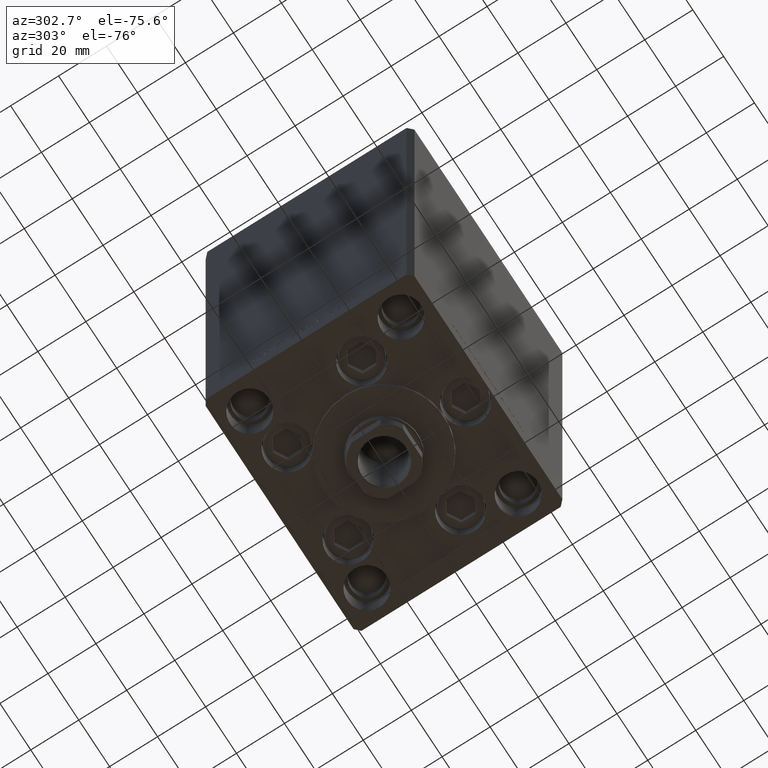
[diagram: clean part render]
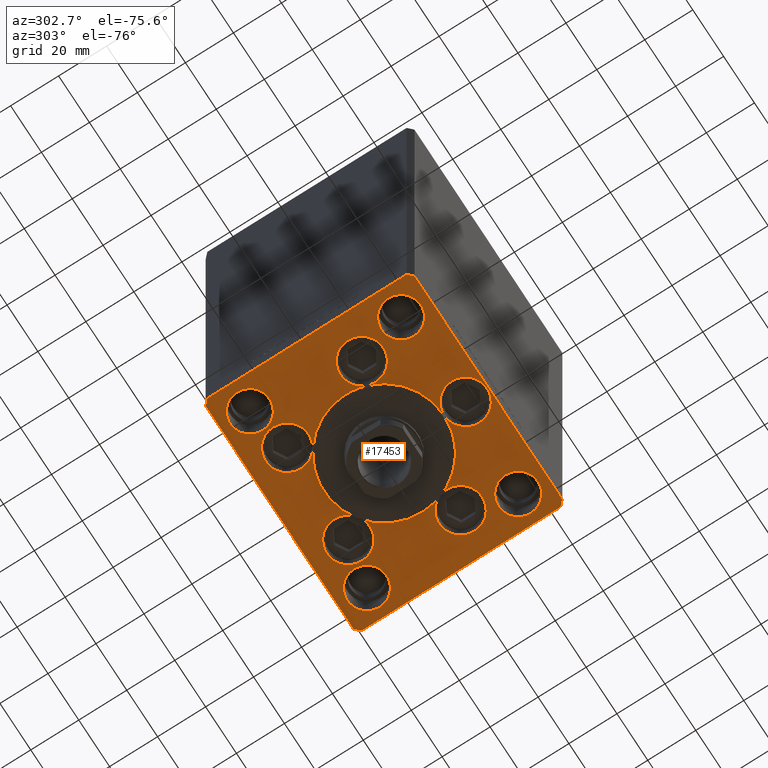
[diagram: same view with one face highlighted and labeled with its STEP entity id]
A machine part, auxiliary view. The second image highlights one B-rep face of the part: STEP entity #17453.
In plain terms, the highlighted planar face has unit normal (0, 0, -1).
Its self-contained STEP definition (entity closure, byte-faithful):
#16 = VERTEX_POINT ( 'NONE', #9636 ) ;
#134 = DIRECTION ( 'NONE',  ( 0.000000000000000000, 0.000000000000000000, 1.000000000000000000 ) ) ;
#420 = ORIENTED_EDGE ( 'NONE', *, *, #46928, .F. ) ;
#467 = AXIS2_PLACEMENT_3D ( 'NONE', #6570, #10533, #25494 ) ;
#691 = EDGE_LOOP ( 'NONE', ( #7470, #17263, #14511, #47252, #4291, #33336, #31871, #9933, #22045, #20170, #30471, #41802, #13029, #11302, #3881, #19226, #420, #13164, #29836, #10150, #27425, #10880 ) ) ;
#726 = AXIS2_PLACEMENT_3D ( 'NONE', #8494, #27417, #11976 ) ;
#769 = CARTESIAN_POINT ( 'NONE',  ( 23.05550741379015633, -11.33333333333332682, 0.000000000000000000 ) ) ;
#800 = CARTESIAN_POINT ( 'NONE',  ( 32.05550741379015989, -11.33333333333332860, 0.000000000000000000 ) ) ;
#864 = DIRECTION ( 'NONE',  ( 1.000000000000000000, 0.000000000000000000, 0.000000000000000000 ) ) ;
#936 = ORIENTED_EDGE ( 'NONE', *, *, #29047, .T. ) ;
#994 = VECTOR ( 'NONE', #11305, 1000.000000000000000 ) ;
#1153 = CARTESIAN_POINT ( 'NONE',  ( -50.00000000000000711, 41.49999999999999289, 0.000000000000000000 ) ) ;
#1226 = FACE_BOUND ( 'NONE', #14929, .T. ) ;
#1275 = CARTESIAN_POINT ( 'NONE',  ( 14.57402977045128623, 20.31249999999998579, 0.000000000000000000 ) ) ;
#1467 = AXIS2_PLACEMENT_3D ( 'NONE', #37613, #6541, #10507 ) ;
#1645 = EDGE_LOOP ( 'NONE', ( #28281, #45213 ) ) ;
#1731 = VERTEX_POINT ( 'NONE', #42754 ) ;
#2144 = DIRECTION ( 'NONE',  ( 1.000000000000000000, 0.000000000000000000, 0.000000000000000000 ) ) ;
#2223 = VERTEX_POINT ( 'NONE', #26697 ) ;
#2377 = CIRCLE ( 'NONE', #36530, 25.00000000000000000 ) ;
#2907 = ORIENTED_EDGE ( 'NONE', *, *, #44178, .F. ) ;
#2910 = CARTESIAN_POINT ( 'NONE',  ( 0.000000000000000000, -34.00000000000000000, 0.000000000000000000 ) ) ;
#3133 = CARTESIAN_POINT ( 'NONE',  ( 47.99999999999999289, 43.50000000000000000, 0.000000000000000000 ) ) ;
#3153 = DIRECTION ( 'NONE',  ( 1.000000000000000000, 0.000000000000000000, 0.000000000000000000 ) ) ;
#3269 = VERTEX_POINT ( 'NONE', #5176 ) ;
#3839 = CARTESIAN_POINT ( 'NONE',  ( 0.000000000000000000, -6.938893903907228378E-15, 0.000000000000000000 ) ) ;
#3881 = ORIENTED_EDGE ( 'NONE', *, *, #34133, .F. ) ;
#4029 = CARTESIAN_POINT ( 'NONE',  ( 50.00000000000000000, 41.50000000000000711, 0.000000000000000000 ) ) ;
#4171 = DIRECTION ( 'NONE',  ( 1.000000000000000000, 0.000000000000000000, 0.000000000000000000 ) ) ;
#4291 = ORIENTED_EDGE ( 'NONE', *, *, #6714, .F. ) ;
#4499 = AXIS2_PLACEMENT_3D ( 'NONE', #12661, #34829, #35807 ) ;
#4556 = CARTESIAN_POINT ( 'NONE',  ( 29.75000000000001066, -31.50000000000000711, 0.000000000000000000 ) ) ;
#4646 = CIRCLE ( 'NONE', #45932, 25.00000000000000000 ) ;
#4648 = EDGE_CURVE ( 'NONE', #36421, #11391, #40799, .T. ) ;
#4782 = DIRECTION ( 'NONE',  ( 0.000000000000000000, 0.000000000000000000, 1.000000000000000000 ) ) ;
#5143 = AXIS2_PLACEMENT_3D ( 'NONE', #14475, #41338, #29429 ) ;
#5158 = CARTESIAN_POINT ( 'NONE',  ( 50.00000000000000000, -41.49999999999992895, 0.000000000000000000 ) ) ;
#5176 = CARTESIAN_POINT ( 'NONE',  ( -41.05550741379015989, -11.33333333333332682, 0.000000000000000000 ) ) ;
#5198 = CIRCLE ( 'NONE', #467, 25.00000000000000000 ) ;
#5259 = EDGE_CURVE ( 'NONE', #25335, #5480, #41557, .T. ) ;
#5294 = DIRECTION ( 'NONE',  ( 1.000000000000000000, 0.000000000000000000, 0.000000000000000000 ) ) ;
#5329 = CARTESIAN_POINT ( 'NONE',  ( -46.25000000000000711, -31.50000000000000711, 0.000000000000000000 ) ) ;
#5480 = VERTEX_POINT ( 'NONE', #1275 ) ;
#5484 = CARTESIAN_POINT ( 'NONE',  ( -50.00000000000000000, -41.50000000000004263, 0.000000000000000000 ) ) ;
#5520 = ORIENTED_EDGE ( 'NONE', *, *, #47137, .T. ) ;
#6032 = CIRCLE ( 'NONE', #48136, 8.250000000000000000 ) ;
#6072 = VECTOR ( 'NONE', #8220, 1000.000000000000000 ) ;
#6541 = DIRECTION ( 'NONE',  ( 0.000000000000000000, 0.000000000000000000, 1.000000000000000000 ) ) ;
#6570 = CARTESIAN_POINT ( 'NONE',  ( 0.000000000000000000, -6.938893903907228378E-15, 0.000000000000000000 ) ) ;
#6593 = DIRECTION ( 'NONE',  ( 0.000000000000000000, 0.000000000000000000, 1.000000000000000000 ) ) ;
#6714 = EDGE_CURVE ( 'NONE', #45288, #5480, #33647, .T. ) ;
#6971 = DIRECTION ( 'NONE',  ( 1.000000000000000000, 1.156482317317871331E-15, 0.000000000000000000 ) ) ;
#7006 = CARTESIAN_POINT ( 'NONE',  ( 50.00000000000000000, 41.50000000000000711, 0.000000000000000000 ) ) ;
#7141 = CARTESIAN_POINT ( 'NONE',  ( 38.00000000000000711, -31.50000000000000711, 0.000000000000000000 ) ) ;
#7154 = ORIENTED_EDGE ( 'NONE', *, *, #36092, .T. ) ;
#7406 = VECTOR ( 'NONE', #6971, 1000.000000000000000 ) ;
#7470 = ORIENTED_EDGE ( 'NONE', *, *, #28594, .F. ) ;
#7489 = VERTEX_POINT ( 'NONE', #11508 ) ;
#8220 = DIRECTION ( 'NONE',  ( -0.7071067811865536790, -0.7071067811865414665, 0.000000000000000000 ) ) ;
#8334 = AXIS2_PLACEMENT_3D ( 'NONE', #35915, #12528, #32186 ) ;
#8494 = CARTESIAN_POINT ( 'NONE',  ( -32.05550741379015989, -11.33333333333332860, 0.000000000000000000 ) ) ;
#8908 = ORIENTED_EDGE ( 'NONE', *, *, #18400, .T. ) ;
#9078 = CARTESIAN_POINT ( 'NONE',  ( -9.000000000000000000, -34.00000000000000000, 0.000000000000000000 ) ) ;
#9081 = CARTESIAN_POINT ( 'NONE',  ( 38.00000000000000000, 31.50000000000000000, 0.000000000000000000 ) ) ;
#9212 = DIRECTION ( 'NONE',  ( 0.7071067811865487940, -0.7071067811865463515, 0.000000000000000000 ) ) ;
#9371 = EDGE_CURVE ( 'NONE', #16721, #47352, #36129, .T. ) ;
#9597 = CARTESIAN_POINT ( 'NONE',  ( -38.00000000000000711, -31.50000000000000711, 0.000000000000000000 ) ) ;
#9636 = CARTESIAN_POINT ( 'NONE',  ( 0.000000000000000000, -25.00000000000000000, 0.000000000000000000 ) ) ;
#9933 = ORIENTED_EDGE ( 'NONE', *, *, #15477, .F. ) ;
#9939 = CARTESIAN_POINT ( 'NONE',  ( 46.25000000000000000, 31.50000000000000000, 0.000000000000000000 ) ) ;
#9997 = VERTEX_POINT ( 'NONE', #46462 ) ;
#10078 = CARTESIAN_POINT ( 'NONE',  ( -38.00000000000000000, 31.50000000000000000, 0.000000000000000000 ) ) ;
#10150 = ORIENTED_EDGE ( 'NONE', *, *, #11003, .F. ) ;
#10412 = CARTESIAN_POINT ( 'NONE',  ( -50.00000000000000000, -41.50000000000004263, 0.000000000000000000 ) ) ;
#10507 = DIRECTION ( 'NONE',  ( 1.000000000000000000, 0.000000000000000000, 0.000000000000000000 ) ) ;
#10533 = DIRECTION ( 'NONE',  ( 0.000000000000000000, 0.000000000000000000, 1.000000000000000000 ) ) ;
#10669 = EDGE_LOOP ( 'NONE', ( #936, #12243, #7154, #14263, #8908, #17847, #5520, #18757 ) ) ;
#10880 = ORIENTED_EDGE ( 'NONE', *, *, #13170, .F. ) ;
#11003 = EDGE_CURVE ( 'NONE', #1731, #25914, #19524, .T. ) ;
#11090 = VECTOR ( 'NONE', #48269, 1000.000000000000114 ) ;
#11139 = DIRECTION ( 'NONE',  ( 1.000000000000000000, 0.000000000000000000, 0.000000000000000000 ) ) ;
#11159 = AXIS2_PLACEMENT_3D ( 'NONE', #18811, #134, #29759 ) ;
#11258 = EDGE_CURVE ( 'NONE', #11385, #47413, #5198, .T. ) ;
#11302 = ORIENTED_EDGE ( 'NONE', *, *, #37822, .F. ) ;
#11305 = DIRECTION ( 'NONE',  ( -1.000000000000000000, -2.891205793294678326E-16, 0.000000000000000000 ) ) ;
#11385 = VERTEX_POINT ( 'NONE', #26225 ) ;
#11391 = VERTEX_POINT ( 'NONE', #19247 ) ;
#11433 = CARTESIAN_POINT ( 'NONE',  ( 0.000000000000000000, -6.938893903907228378E-15, 0.000000000000000000 ) ) ;
#11504 = DIRECTION ( 'NONE',  ( 1.000000000000000000, 0.000000000000000000, 0.000000000000000000 ) ) ;
#11508 = CARTESIAN_POINT ( 'NONE',  ( 47.99999999999999289, 43.50000000000000000, 0.000000000000000000 ) ) ;
#11835 = DIRECTION ( 'NONE',  ( 1.000000000000000000, 0.000000000000000000, 0.000000000000000000 ) ) ;
#11976 = DIRECTION ( 'NONE',  ( 1.000000000000000000, 0.000000000000000000, 0.000000000000000000 ) ) ;
#12036 = CIRCLE ( 'NONE', #36670, 8.250000000000000000 ) ;
#12069 = DIRECTION ( 'NONE',  ( 1.000000000000000000, 0.000000000000000000, 0.000000000000000000 ) ) ;
#12142 = AXIS2_PLACEMENT_3D ( 'NONE', #17998, #14006, #22463 ) ;
#12243 = ORIENTED_EDGE ( 'NONE', *, *, #4648, .T. ) ;
#12270 = CIRCLE ( 'NONE', #8334, 9.000000000000001776 ) ;
#12528 = DIRECTION ( 'NONE',  ( 0.000000000000000000, 0.000000000000000000, 1.000000000000000000 ) ) ;
#12661 = CARTESIAN_POINT ( 'NONE',  ( -19.82068048781374969, 27.62499999999998934, 0.000000000000000000 ) ) ;
#12750 = CIRCLE ( 'NONE', #18348, 9.000000000000000000 ) ;
#12835 = LINE ( 'NONE', #1153, #48271 ) ;
#12904 = FACE_BOUND ( 'NONE', #1645, .T. ) ;
#13029 = ORIENTED_EDGE ( 'NONE', *, *, #38606, .F. ) ;
#13048 = CIRCLE ( 'NONE', #22592, 8.250000000000000000 ) ;
#13105 = EDGE_CURVE ( 'NONE', #18201, #49078, #16379, .T. ) ;
#13154 = FACE_OUTER_BOUND ( 'NONE', #10669, .T. ) ;
#13164 = ORIENTED_EDGE ( 'NONE', *, *, #11258, .F. ) ;
#13170 = EDGE_CURVE ( 'NONE', #25914, #38604, #42579, .T. ) ;
#13393 = CARTESIAN_POINT ( 'NONE',  ( 0.000000000000000000, -34.00000000000000000, 0.000000000000000000 ) ) ;
#13844 = DIRECTION ( 'NONE',  ( 0.000000000000000000, 0.000000000000000000, 1.000000000000000000 ) ) ;
#13949 = CIRCLE ( 'NONE', #34653, 9.000000000000001776 ) ;
#14006 = DIRECTION ( 'NONE',  ( 0.000000000000000000, 0.000000000000000000, 1.000000000000000000 ) ) ;
#14149 = CARTESIAN_POINT ( 'NONE',  ( -19.82068048781374969, 27.62499999999998934, 0.000000000000000000 ) ) ;
#14168 = CIRCLE ( 'NONE', #49136, 9.000000000000001776 ) ;
#14263 = ORIENTED_EDGE ( 'NONE', *, *, #17620, .T. ) ;
#14300 = DIRECTION ( 'NONE',  ( 1.000000000000000000, 0.000000000000000000, 0.000000000000000000 ) ) ;
#14475 = CARTESIAN_POINT ( 'NONE',  ( 19.82068048781374969, 27.62499999999998934, 0.000000000000000000 ) ) ;
#14511 = ORIENTED_EDGE ( 'NONE', *, *, #20103, .F. ) ;
#14703 = LINE ( 'NONE', #7006, #36070 ) ;
#14929 = EDGE_LOOP ( 'NONE', ( #39606, #46557 ) ) ;
#15127 = LINE ( 'NONE', #5158, #32881 ) ;
#15477 = EDGE_CURVE ( 'NONE', #29057, #30618, #14168, .T. ) ;
#15647 = AXIS2_PLACEMENT_3D ( 'NONE', #39002, #30817, #31546 ) ;
#15752 = CIRCLE ( 'NONE', #39575, 9.000000000000001776 ) ;
#15862 = DIRECTION ( 'NONE',  ( 0.000000000000000000, 1.000000000000000000, 0.000000000000000000 ) ) ;
#15911 = EDGE_CURVE ( 'NONE', #3269, #9997, #12270, .T. ) ;
#15969 = DIRECTION ( 'NONE',  ( 0.000000000000000000, 0.000000000000000000, 1.000000000000000000 ) ) ;
#16277 = AXIS2_PLACEMENT_3D ( 'NONE', #9081, #20543, #12069 ) ;
#16379 = CIRCLE ( 'NONE', #19598, 8.249999999999992895 ) ;
#16409 = DIRECTION ( 'NONE',  ( 1.000000000000000000, 0.000000000000000000, 0.000000000000000000 ) ) ;
#16444 = CARTESIAN_POINT ( 'NONE',  ( 32.05550741379015989, -11.33333333333332860, 0.000000000000000000 ) ) ;
#16487 = CARTESIAN_POINT ( 'NONE',  ( -32.05550741379015989, -11.33333333333332860, 0.000000000000000000 ) ) ;
#16654 = CARTESIAN_POINT ( 'NONE',  ( 0.000000000000000000, 0.000000000000000000, 0.000000000000000000 ) ) ;
#16721 = VERTEX_POINT ( 'NONE', #40264 ) ;
#16900 = FACE_BOUND ( 'NONE', #691, .T. ) ;
#17263 = ORIENTED_EDGE ( 'NONE', *, *, #5259, .F. ) ;
#17365 = CIRCLE ( 'NONE', #1467, 8.249999999999992895 ) ;
#17396 = CIRCLE ( 'NONE', #726, 9.000000000000001776 ) ;
#17453 = ADVANCED_FACE ( 'NONE', ( #16900, #1226, #12904, #31581, #20397, #13154 ), #43256, .T. ) ;
#17479 = VERTEX_POINT ( 'NONE', #10412 ) ;
#17620 = EDGE_CURVE ( 'NONE', #17952, #40995, #15127, .T. ) ;
#17774 = CARTESIAN_POINT ( 'NONE',  ( 50.00000000000000000, -41.49999999999992895, 0.000000000000000000 ) ) ;
#17847 = ORIENTED_EDGE ( 'NONE', *, *, #42592, .T. ) ;
#17924 = AXIS2_PLACEMENT_3D ( 'NONE', #14149, #22358, #11139 ) ;
#17952 = VERTEX_POINT ( 'NONE', #17774 ) ;
#17998 = CARTESIAN_POINT ( 'NONE',  ( 19.82068048781374969, 27.62499999999998934, 0.000000000000000000 ) ) ;
#18201 = VERTEX_POINT ( 'NONE', #4556 ) ;
#18348 = AXIS2_PLACEMENT_3D ( 'NONE', #2910, #41200, #3153 ) ;
#18400 = EDGE_CURVE ( 'NONE', #40995, #7489, #14703, .T. ) ;
#18757 = ORIENTED_EDGE ( 'NONE', *, *, #31086, .T. ) ;
#18798 = LINE ( 'NONE', #3133, #994 ) ;
#18811 = CARTESIAN_POINT ( 'NONE',  ( 0.000000000000000000, -6.938893903907228378E-15, 0.000000000000000000 ) ) ;
#19103 = AXIS2_PLACEMENT_3D ( 'NONE', #19797, #34953, #864 ) ;
#19226 = ORIENTED_EDGE ( 'NONE', *, *, #15911, .F. ) ;
#19247 = CARTESIAN_POINT ( 'NONE',  ( 48.00000000000000711, -43.49999999999992184, 0.000000000000000000 ) ) ;
#19524 = CIRCLE ( 'NONE', #17924, 9.000000000000000000 ) ;
#19598 = AXIS2_PLACEMENT_3D ( 'NONE', #7141, #26060, #22314 ) ;
#19697 = CARTESIAN_POINT ( 'NONE',  ( 32.05550741379015989, -11.33333333333332860, 0.000000000000000000 ) ) ;
#19797 = CARTESIAN_POINT ( 'NONE',  ( 0.000000000000000000, -34.00000000000000000, 0.000000000000000000 ) ) ;
#19936 = CARTESIAN_POINT ( 'NONE',  ( -48.00000000000000000, 43.49999999999997158, 0.000000000000000000 ) ) ;
#20103 = EDGE_CURVE ( 'NONE', #30236, #25335, #26607, .T. ) ;
#20170 = ORIENTED_EDGE ( 'NONE', *, *, #36780, .F. ) ;
#20299 = DIRECTION ( 'NONE',  ( 0.000000000000000000, 0.000000000000000000, 1.000000000000000000 ) ) ;
#20397 = FACE_BOUND ( 'NONE', #36146, .T. ) ;
#20543 = DIRECTION ( 'NONE',  ( 0.000000000000000000, 0.000000000000000000, 1.000000000000000000 ) ) ;
#21156 = AXIS2_PLACEMENT_3D ( 'NONE', #46397, #20299, #11835 ) ;
#21700 = DIRECTION ( 'NONE',  ( -0.7071067811865512365, 0.7071067811865439090, 0.000000000000000000 ) ) ;
#21791 = CARTESIAN_POINT ( 'NONE',  ( 28.82068048781374969, 27.62499999999998934, 0.000000000000000000 ) ) ;
#22044 = CARTESIAN_POINT ( 'NONE',  ( -38.00000000000000000, 31.50000000000000000, 0.000000000000000000 ) ) ;
#22045 = ORIENTED_EDGE ( 'NONE', *, *, #47977, .F. ) ;
#22291 = CIRCLE ( 'NONE', #11159, 25.00000000000000000 ) ;
#22314 = DIRECTION ( 'NONE',  ( 1.000000000000000000, 0.000000000000000000, 0.000000000000000000 ) ) ;
#22358 = DIRECTION ( 'NONE',  ( 0.000000000000000000, 0.000000000000000000, 1.000000000000000000 ) ) ;
#22463 = DIRECTION ( 'NONE',  ( 1.000000000000000000, 0.000000000000000000, 0.000000000000000000 ) ) ;
#22592 = AXIS2_PLACEMENT_3D ( 'NONE', #46382, #46632, #27258 ) ;
#22738 = AXIS2_PLACEMENT_3D ( 'NONE', #19697, #27159, #42067 ) ;
#22833 = VERTEX_POINT ( 'NONE', #43120 ) ;
#23034 = EDGE_CURVE ( 'NONE', #45229, #37783, #47349, .T. ) ;
#23220 = AXIS2_PLACEMENT_3D ( 'NONE', #9597, #28029, #36221 ) ;
#23250 = EDGE_CURVE ( 'NONE', #23355, #22833, #6032, .T. ) ;
#23355 = VERTEX_POINT ( 'NONE', #48152 ) ;
#23818 = VERTEX_POINT ( 'NONE', #47543 ) ;
#23975 = EDGE_CURVE ( 'NONE', #38604, #1731, #33092, .T. ) ;
#24860 = CARTESIAN_POINT ( 'NONE',  ( -48.00000000000000711, -43.50000000000002842, 0.000000000000000000 ) ) ;
#24941 = EDGE_CURVE ( 'NONE', #47352, #16721, #33914, .T. ) ;
#25335 = VERTEX_POINT ( 'NONE', #32479 ) ;
#25494 = DIRECTION ( 'NONE',  ( 1.000000000000000000, 0.000000000000000000, 0.000000000000000000 ) ) ;
#25543 = DIRECTION ( 'NONE',  ( 1.000000000000000000, 0.000000000000000000, 0.000000000000000000 ) ) ;
#25656 = CARTESIAN_POINT ( 'NONE',  ( 48.00000000000000711, -43.49999999999992184, 0.000000000000000000 ) ) ;
#25914 = VERTEX_POINT ( 'NONE', #28820 ) ;
#26060 = DIRECTION ( 'NONE',  ( 0.000000000000000000, 0.000000000000000000, 1.000000000000000000 ) ) ;
#26139 = CARTESIAN_POINT ( 'NONE',  ( 46.25000000000000000, -31.50000000000000711, 0.000000000000000000 ) ) ;
#26225 = CARTESIAN_POINT ( 'NONE',  ( -25.00000000000000000, -6.938893903907228378E-15, 0.000000000000000000 ) ) ;
#26607 = CIRCLE ( 'NONE', #5143, 8.999999999999998224 ) ;
#26697 = CARTESIAN_POINT ( 'NONE',  ( -50.00000000000000711, 41.49999999999999289, 0.000000000000000000 ) ) ;
#26883 = CIRCLE ( 'NONE', #34788, 25.00000000000000000 ) ;
#26915 = LINE ( 'NONE', #42292, #6072 ) ;
#26954 = CARTESIAN_POINT ( 'NONE',  ( 0.000000000000000000, -6.938893903907228378E-15, 0.000000000000000000 ) ) ;
#27128 = DIRECTION ( 'NONE',  ( 0.000000000000000000, 0.000000000000000000, 1.000000000000000000 ) ) ;
#27159 = DIRECTION ( 'NONE',  ( 0.000000000000000000, 0.000000000000000000, 1.000000000000000000 ) ) ;
#27258 = DIRECTION ( 'NONE',  ( 1.000000000000000000, 0.000000000000000000, 0.000000000000000000 ) ) ;
#27417 = DIRECTION ( 'NONE',  ( 0.000000000000000000, 0.000000000000000000, 1.000000000000000000 ) ) ;
#27425 = ORIENTED_EDGE ( 'NONE', *, *, #23975, .F. ) ;
#27705 = AXIS2_PLACEMENT_3D ( 'NONE', #32979, #36222, #2144 ) ;
#28029 = DIRECTION ( 'NONE',  ( 0.000000000000000000, 0.000000000000000000, 1.000000000000000000 ) ) ;
#28281 = ORIENTED_EDGE ( 'NONE', *, *, #23250, .F. ) ;
#28577 = ORIENTED_EDGE ( 'NONE', *, *, #41750, .F. ) ;
#28594 = EDGE_CURVE ( 'NONE', #5480, #25914, #4646, .T. ) ;
#28797 = CARTESIAN_POINT ( 'NONE',  ( -10.82068048781375147, 27.62499999999998934, 0.000000000000000000 ) ) ;
#28820 = CARTESIAN_POINT ( 'NONE',  ( -14.57402977045128978, 20.31249999999999289, 0.000000000000000000 ) ) ;
#29043 = DIRECTION ( 'NONE',  ( 1.000000000000000000, 0.000000000000000000, 0.000000000000000000 ) ) ;
#29047 = EDGE_CURVE ( 'NONE', #17479, #36421, #43283, .T. ) ;
#29057 = VERTEX_POINT ( 'NONE', #769 ) ;
#29092 = VERTEX_POINT ( 'NONE', #19936 ) ;
#29429 = DIRECTION ( 'NONE',  ( 1.000000000000000000, 0.000000000000000000, 0.000000000000000000 ) ) ;
#29759 = DIRECTION ( 'NONE',  ( 1.000000000000000000, 0.000000000000000000, 0.000000000000000000 ) ) ;
#29836 = ORIENTED_EDGE ( 'NONE', *, *, #38624, .F. ) ;
#30236 = VERTEX_POINT ( 'NONE', #21791 ) ;
#30253 = EDGE_CURVE ( 'NONE', #5480, #30236, #38022, .T. ) ;
#30471 = ORIENTED_EDGE ( 'NONE', *, *, #38052, .F. ) ;
#30548 = DIRECTION ( 'NONE',  ( 0.000000000000000000, 0.000000000000000000, 1.000000000000000000 ) ) ;
#30602 = DIRECTION ( 'NONE',  ( 1.000000000000000000, 0.000000000000000000, 0.000000000000000000 ) ) ;
#30618 = VERTEX_POINT ( 'NONE', #45265 ) ;
#30817 = DIRECTION ( 'NONE',  ( 0.000000000000000000, 0.000000000000000000, 1.000000000000000000 ) ) ;
#31086 = EDGE_CURVE ( 'NONE', #2223, #17479, #12835, .T. ) ;
#31153 = CIRCLE ( 'NONE', #23220, 8.250000000000000000 ) ;
#31260 = DIRECTION ( 'NONE',  ( 8.360113137237620037E-17, -1.000000000000000000, 0.000000000000000000 ) ) ;
#31546 = DIRECTION ( 'NONE',  ( 1.000000000000000000, 0.000000000000000000, 0.000000000000000000 ) ) ;
#31581 = FACE_BOUND ( 'NONE', #37365, .T. ) ;
#31597 = EDGE_CURVE ( 'NONE', #30618, #40941, #15752, .T. ) ;
#31871 = ORIENTED_EDGE ( 'NONE', *, *, #31597, .F. ) ;
#31890 = EDGE_CURVE ( 'NONE', #40941, #45288, #26883, .T. ) ;
#31891 = ORIENTED_EDGE ( 'NONE', *, *, #13105, .F. ) ;
#32186 = DIRECTION ( 'NONE',  ( 1.000000000000000000, 0.000000000000000000, 0.000000000000000000 ) ) ;
#32315 = DIRECTION ( 'NONE',  ( 1.000000000000000000, 0.000000000000000000, 0.000000000000000000 ) ) ;
#32479 = CARTESIAN_POINT ( 'NONE',  ( 10.82068048781375147, 27.62499999999998934, 0.000000000000000000 ) ) ;
#32763 = CARTESIAN_POINT ( 'NONE',  ( 0.000000000000000000, -6.938893903907228378E-15, 0.000000000000000000 ) ) ;
#32863 = LINE ( 'NONE', #25656, #11090 ) ;
#32881 = VECTOR ( 'NONE', #15862, 1000.000000000000000 ) ;
#32979 = CARTESIAN_POINT ( 'NONE',  ( 19.82068048781374969, 27.62499999999998934, 0.000000000000000000 ) ) ;
#33092 = CIRCLE ( 'NONE', #4499, 9.000000000000000000 ) ;
#33283 = EDGE_CURVE ( 'NONE', #49078, #18201, #17365, .T. ) ;
#33336 = ORIENTED_EDGE ( 'NONE', *, *, #31890, .F. ) ;
#33647 = CIRCLE ( 'NONE', #34459, 25.00000000000000000 ) ;
#33914 = CIRCLE ( 'NONE', #15647, 8.250000000000000000 ) ;
#33940 = DIRECTION ( 'NONE',  ( 1.000000000000000000, 0.000000000000000000, 0.000000000000000000 ) ) ;
#34081 = CARTESIAN_POINT ( 'NONE',  ( -48.00000000000000711, -43.50000000000002842, 0.000000000000000000 ) ) ;
#34133 = EDGE_CURVE ( 'NONE', #9997, #47413, #17396, .T. ) ;
#34459 = AXIS2_PLACEMENT_3D ( 'NONE', #11433, #27128, #30602 ) ;
#34653 = AXIS2_PLACEMENT_3D ( 'NONE', #16487, #46326, #5294 ) ;
#34788 = AXIS2_PLACEMENT_3D ( 'NONE', #42214, #30548, #4171 ) ;
#34829 = DIRECTION ( 'NONE',  ( 0.000000000000000000, 0.000000000000000000, 1.000000000000000000 ) ) ;
#34953 = DIRECTION ( 'NONE',  ( 0.000000000000000000, 0.000000000000000000, 1.000000000000000000 ) ) ;
#35807 = DIRECTION ( 'NONE',  ( 1.000000000000000000, 0.000000000000000000, 0.000000000000000000 ) ) ;
#35915 = CARTESIAN_POINT ( 'NONE',  ( -32.05550741379015989, -11.33333333333332860, 0.000000000000000000 ) ) ;
#36070 = VECTOR ( 'NONE', #21700, 999.9999999999998863 ) ;
#36092 = EDGE_CURVE ( 'NONE', #11391, #17952, #32863, .T. ) ;
#36129 = CIRCLE ( 'NONE', #16277, 8.250000000000000000 ) ;
#36146 = EDGE_LOOP ( 'NONE', ( #45742, #31891 ) ) ;
#36221 = DIRECTION ( 'NONE',  ( 1.000000000000000000, 0.000000000000000000, 0.000000000000000000 ) ) ;
#36222 = DIRECTION ( 'NONE',  ( 0.000000000000000000, 0.000000000000000000, 1.000000000000000000 ) ) ;
#36421 = VERTEX_POINT ( 'NONE', #24860 ) ;
#36530 = AXIS2_PLACEMENT_3D ( 'NONE', #26954, #41855, #11504 ) ;
#36670 = AXIS2_PLACEMENT_3D ( 'NONE', #10078, #6593, #14300 ) ;
#36780 = EDGE_CURVE ( 'NONE', #16, #40941, #2377, .T. ) ;
#37207 = DIRECTION ( 'NONE',  ( 0.000000000000000000, 0.000000000000000000, 1.000000000000000000 ) ) ;
#37365 = EDGE_LOOP ( 'NONE', ( #28577, #2907 ) ) ;
#37414 = DIRECTION ( 'NONE',  ( 0.000000000000000000, 0.000000000000000000, 1.000000000000000000 ) ) ;
#37613 = CARTESIAN_POINT ( 'NONE',  ( 38.00000000000000711, -31.50000000000000711, 0.000000000000000000 ) ) ;
#37783 = VERTEX_POINT ( 'NONE', #48634 ) ;
#37822 = EDGE_CURVE ( 'NONE', #47413, #16, #22291, .T. ) ;
#38022 = CIRCLE ( 'NONE', #27705, 8.999999999999998224 ) ;
#38052 = EDGE_CURVE ( 'NONE', #37783, #16, #38925, .T. ) ;
#38409 = AXIS2_PLACEMENT_3D ( 'NONE', #16654, #43509, #16409 ) ;
#38604 = VERTEX_POINT ( 'NONE', #28797 ) ;
#38606 = EDGE_CURVE ( 'NONE', #16, #45229, #12750, .T. ) ;
#38624 = EDGE_CURVE ( 'NONE', #25914, #11385, #46133, .T. ) ;
#38925 = CIRCLE ( 'NONE', #19103, 9.000000000000000000 ) ;
#38997 = AXIS2_PLACEMENT_3D ( 'NONE', #32763, #13844, #29043 ) ;
#39002 = CARTESIAN_POINT ( 'NONE',  ( 38.00000000000000000, 31.50000000000000000, 0.000000000000000000 ) ) ;
#39071 = DIRECTION ( 'NONE',  ( 1.000000000000000000, 0.000000000000000000, 0.000000000000000000 ) ) ;
#39312 = DIRECTION ( 'NONE',  ( 0.000000000000000000, 0.000000000000000000, 1.000000000000000000 ) ) ;
#39338 = DIRECTION ( 'NONE',  ( 1.000000000000000000, 0.000000000000000000, 0.000000000000000000 ) ) ;
#39575 = AXIS2_PLACEMENT_3D ( 'NONE', #800, #4782, #39338 ) ;
#39606 = ORIENTED_EDGE ( 'NONE', *, *, #24941, .F. ) ;
#39914 = CARTESIAN_POINT ( 'NONE',  ( 25.00000000000000000, -3.877276906038844941E-15, 0.000000000000000000 ) ) ;
#40264 = CARTESIAN_POINT ( 'NONE',  ( 29.74999999999999645, 31.50000000000000000, 0.000000000000000000 ) ) ;
#40537 = EDGE_CURVE ( 'NONE', #22833, #23355, #12036, .T. ) ;
#40799 = LINE ( 'NONE', #34081, #7406 ) ;
#40941 = VERTEX_POINT ( 'NONE', #44099 ) ;
#40995 = VERTEX_POINT ( 'NONE', #4029 ) ;
#41200 = DIRECTION ( 'NONE',  ( 0.000000000000000000, 0.000000000000000000, 1.000000000000000000 ) ) ;
#41338 = DIRECTION ( 'NONE',  ( 0.000000000000000000, 0.000000000000000000, 1.000000000000000000 ) ) ;
#41557 = CIRCLE ( 'NONE', #12142, 8.999999999999998224 ) ;
#41750 = EDGE_CURVE ( 'NONE', #23818, #42830, #31153, .T. ) ;
#41802 = ORIENTED_EDGE ( 'NONE', *, *, #23034, .F. ) ;
#41855 = DIRECTION ( 'NONE',  ( 0.000000000000000000, 0.000000000000000000, 1.000000000000000000 ) ) ;
#42067 = DIRECTION ( 'NONE',  ( 1.000000000000000000, 0.000000000000000000, 0.000000000000000000 ) ) ;
#42214 = CARTESIAN_POINT ( 'NONE',  ( 0.000000000000000000, -6.938893903907228378E-15, 0.000000000000000000 ) ) ;
#42292 = CARTESIAN_POINT ( 'NONE',  ( -48.00000000000000000, 43.49999999999997158, 0.000000000000000000 ) ) ;
#42424 = CARTESIAN_POINT ( 'NONE',  ( -23.57022603955158502, -8.333333333333332149, 0.000000000000000000 ) ) ;
#42579 = CIRCLE ( 'NONE', #21156, 9.000000000000000000 ) ;
#42592 = EDGE_CURVE ( 'NONE', #7489, #29092, #18798, .T. ) ;
#42754 = CARTESIAN_POINT ( 'NONE',  ( -28.82068048781374969, 27.62499999999998934, 0.000000000000000000 ) ) ;
#42830 = VERTEX_POINT ( 'NONE', #5329 ) ;
#43120 = CARTESIAN_POINT ( 'NONE',  ( -46.25000000000000000, 31.50000000000000000, 0.000000000000000000 ) ) ;
#43256 = PLANE ( 'NONE',  #38409 ) ;
#43283 = LINE ( 'NONE', #5484, #48313 ) ;
#43509 = DIRECTION ( 'NONE',  ( -0.000000000000000000, 0.000000000000000000, 1.000000000000000000 ) ) ;
#44099 = CARTESIAN_POINT ( 'NONE',  ( 23.57022603955158502, -8.333333333333332149, 0.000000000000000000 ) ) ;
#44165 = CIRCLE ( 'NONE', #22738, 9.000000000000001776 ) ;
#44178 = EDGE_CURVE ( 'NONE', #42830, #23818, #13048, .T. ) ;
#45213 = ORIENTED_EDGE ( 'NONE', *, *, #40537, .F. ) ;
#45229 = VERTEX_POINT ( 'NONE', #9078 ) ;
#45265 = CARTESIAN_POINT ( 'NONE',  ( 41.05550741379015989, -11.33333333333332860, 0.000000000000000000 ) ) ;
#45288 = VERTEX_POINT ( 'NONE', #39914 ) ;
#45742 = ORIENTED_EDGE ( 'NONE', *, *, #33283, .F. ) ;
#45932 = AXIS2_PLACEMENT_3D ( 'NONE', #3839, #37414, #33940 ) ;
#46133 = CIRCLE ( 'NONE', #38997, 25.00000000000000000 ) ;
#46326 = DIRECTION ( 'NONE',  ( 0.000000000000000000, 0.000000000000000000, 1.000000000000000000 ) ) ;
#46382 = CARTESIAN_POINT ( 'NONE',  ( -38.00000000000000711, -31.50000000000000711, 0.000000000000000000 ) ) ;
#46397 = CARTESIAN_POINT ( 'NONE',  ( -19.82068048781374969, 27.62499999999998934, 0.000000000000000000 ) ) ;
#46462 = CARTESIAN_POINT ( 'NONE',  ( -23.05550741379015633, -11.33333333333332860, 0.000000000000000000 ) ) ;
#46557 = ORIENTED_EDGE ( 'NONE', *, *, #9371, .F. ) ;
#46632 = DIRECTION ( 'NONE',  ( 0.000000000000000000, 0.000000000000000000, 1.000000000000000000 ) ) ;
#46928 = EDGE_CURVE ( 'NONE', #47413, #3269, #13949, .T. ) ;
#47137 = EDGE_CURVE ( 'NONE', #29092, #2223, #26915, .T. ) ;
#47252 = ORIENTED_EDGE ( 'NONE', *, *, #30253, .F. ) ;
#47349 = CIRCLE ( 'NONE', #48904, 9.000000000000000000 ) ;
#47352 = VERTEX_POINT ( 'NONE', #9939 ) ;
#47413 = VERTEX_POINT ( 'NONE', #42424 ) ;
#47543 = CARTESIAN_POINT ( 'NONE',  ( -29.75000000000000711, -31.50000000000000711, 0.000000000000000000 ) ) ;
#47977 = EDGE_CURVE ( 'NONE', #40941, #29057, #44165, .T. ) ;
#48136 = AXIS2_PLACEMENT_3D ( 'NONE', #22044, #37207, #25543 ) ;
#48152 = CARTESIAN_POINT ( 'NONE',  ( -29.75000000000000000, 31.50000000000000000, 0.000000000000000000 ) ) ;
#48269 = DIRECTION ( 'NONE',  ( 0.7071067811865474617, 0.7071067811865474617, 0.000000000000000000 ) ) ;
#48271 = VECTOR ( 'NONE', #31260, 1000.000000000000000 ) ;
#48313 = VECTOR ( 'NONE', #9212, 1000.000000000000000 ) ;
#48634 = CARTESIAN_POINT ( 'NONE',  ( 9.000000000000000000, -34.00000000000000000, 0.000000000000000000 ) ) ;
#48904 = AXIS2_PLACEMENT_3D ( 'NONE', #13393, #15969, #32315 ) ;
#49078 = VERTEX_POINT ( 'NONE', #26139 ) ;
#49136 = AXIS2_PLACEMENT_3D ( 'NONE', #16444, #39312, #39071 ) ;